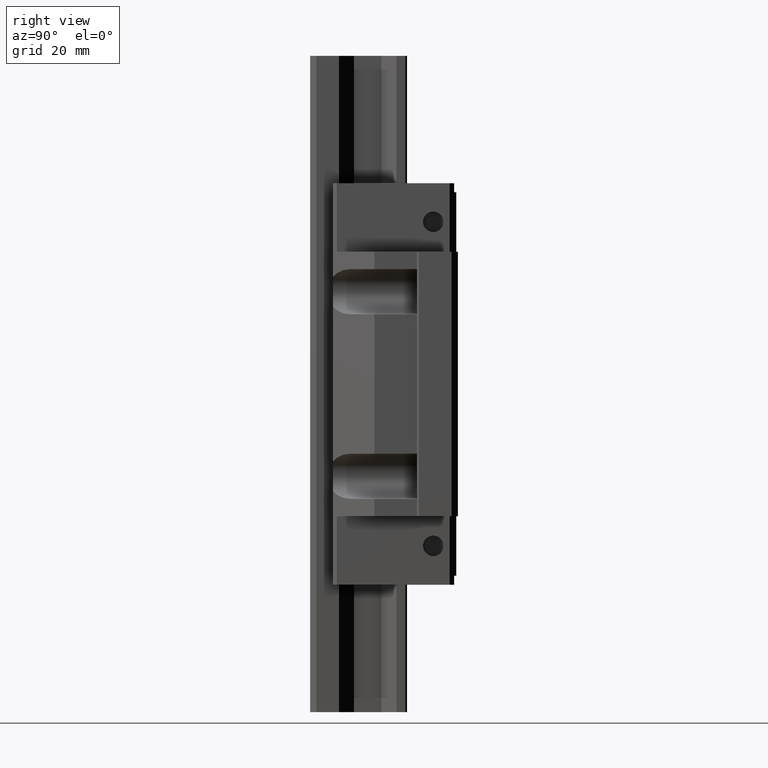
[diagram: clean part render]
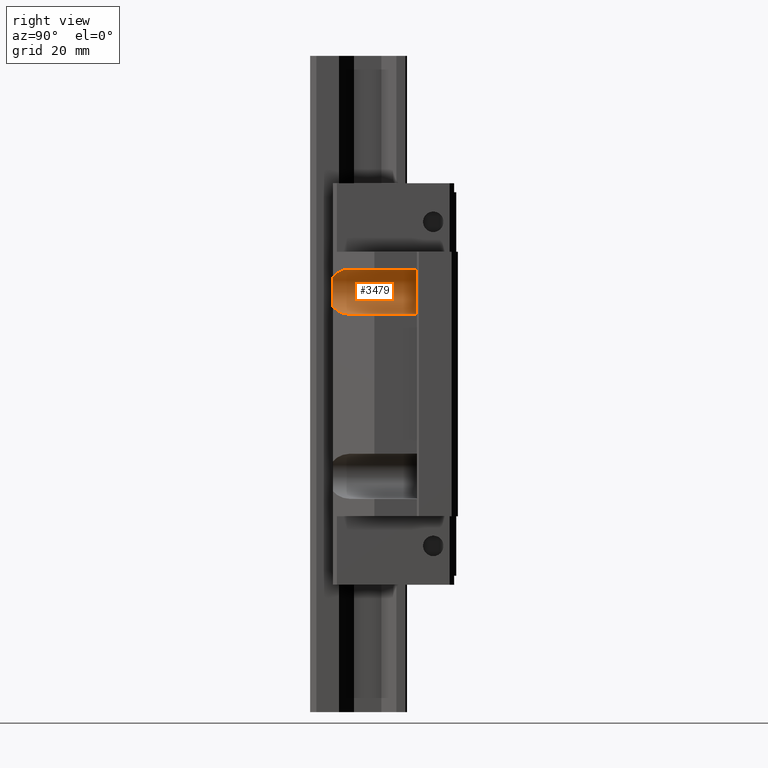
[diagram: same view with one face highlighted and labeled with its STEP entity id]
A machine part, right view. The second image highlights one B-rep face of the part: STEP entity #3479.
In plain terms, the highlighted cylindrical surface (edge-blend (fillet) strip) has radius 5.5 mm, axis along (0, 1, 0).
Its self-contained STEP definition (entity closure, byte-faithful):
#356=CARTESIAN_POINT('',(2.85E1,-3.049996923372E1,2.25E1));
#357=DIRECTION('',(-6.737067496146E-14,-1.E0,0.E0));
#358=DIRECTION('',(-7.566458100730E-1,5.102988738641E-14,6.538249904210E-1));
#359=AXIS2_PLACEMENT_3D('',#356,#357,#358);
#1102=CARTESIAN_POINT('',(2.433844828081E1,-3.049996900234E1,2.609603765913E1));
#1103=CARTESIAN_POINT('',(2.446703271619E1,-3.037138456696E1,2.624484330722E1));
#1104=CARTESIAN_POINT('',(2.474465867184E1,-3.009375912073E1,2.653406918174E1));
#1105=CARTESIAN_POINT('',(2.522954756495E1,-2.960887002287E1,2.693758573973E1));
#1106=CARTESIAN_POINT('',(2.577948186E1,-2.905893578268E1,2.729560996499E1));
#1107=CARTESIAN_POINT('',(2.639282442324E1,-2.844559320473E1,2.759620913460E1));
#1108=CARTESIAN_POINT('',(2.706342246609E1,-2.777499516583E1,2.782525278679E1));
#1109=CARTESIAN_POINT('',(2.777287194244E1,-2.706554568840E1,2.796769878814E1));
#1110=CARTESIAN_POINT('',(2.825515011513E1,-2.658326751595E1,2.8E1));
#1111=CARTESIAN_POINT('',(2.85E1,-2.633841763108E1,2.8E1));
#1113=DIRECTION('',(3.305170446036E-14,1.E0,0.E0));
#1114=VECTOR('',#1113,1.633841546130E1);
#1115=CARTESIAN_POINT('',(2.85E1,-2.633841763108E1,2.8E1));
#1116=LINE('',#1115,#1114);
#1117=DIRECTION('',(-3.305170444697E-14,-1.E0,0.E0));
#1118=VECTOR('',#1117,1.633841546793E1);
#1119=CARTESIAN_POINT('',(2.85E1,-1.000000216315E1,1.7E1));
#1120=LINE('',#1119,#1118);
#1121=CARTESIAN_POINT('',(2.85E1,-2.633841763108E1,1.7E1));
#1122=CARTESIAN_POINT('',(2.825515707161E1,-2.658326055946E1,1.7E1));
#1123=CARTESIAN_POINT('',(2.777289115764E1,-2.706552647340E1,1.703229963103E1));
#1124=CARTESIAN_POINT('',(2.706346331250E1,-2.777495431875E1,1.717473698823E1));
#1125=CARTESIAN_POINT('',(2.639286552875E1,-2.844555210172E1,1.740377310714E1));
#1126=CARTESIAN_POINT('',(2.577949652886E1,-2.905892110453E1,1.770438055397E1));
#1127=CARTESIAN_POINT('',(2.522955583240E1,-2.960886179009E1,1.806240876381E1));
#1128=CARTESIAN_POINT('',(2.474467836055E1,-3.009373930262E1,1.846591267200E1));
#1129=CARTESIAN_POINT('',(2.446704033970E1,-3.037137722226E1,1.875514780310E1));
#1130=CARTESIAN_POINT('',(2.433844883599E1,-3.049996872597E1,1.890396163109E1));
#1156=CARTESIAN_POINT('',(2.85E1,-1.E1,2.25E1));
#1157=DIRECTION('',(6.737067496146E-14,1.E0,0.E0));
#1158=DIRECTION('',(0.E0,0.E0,-1.E0));
#1159=AXIS2_PLACEMENT_3D('',#1156,#1157,#1158);
#1748=CARTESIAN_POINT('',(2.433844828081E1,-3.049996900234E1,2.609603765913E1));
#1749=VERTEX_POINT('',#1748);
#1750=CARTESIAN_POINT('',(2.433844903031E1,-3.049996923372E1,1.890396141195E1));
#1751=VERTEX_POINT('',#1750);
#1946=CARTESIAN_POINT('',(2.85E1,-1.000000216978E1,2.8E1));
#1947=VERTEX_POINT('',#1946);
#1948=CARTESIAN_POINT('',(2.85E1,-2.633841763108E1,2.8E1));
#1949=VERTEX_POINT('',#1948);
#1950=CARTESIAN_POINT('',(2.85E1,-1.000000216315E1,1.7E1));
#1951=VERTEX_POINT('',#1950);
#1954=CARTESIAN_POINT('',(2.85E1,-2.633841763108E1,1.7E1));
#1955=VERTEX_POINT('',#1954);
#3463=CARTESIAN_POINT('',(2.85E1,-1.E1,2.25E1));
#3464=DIRECTION('',(6.737067496146E-14,1.E0,0.E0));
#3465=DIRECTION('',(0.E0,0.E0,1.E0));
#3466=AXIS2_PLACEMENT_3D('',#3463,#3464,#3465);
#3467=CYLINDRICAL_SURFACE('',#3466,5.5E0);
#3468=ORIENTED_EDGE('',*,*,#2411,.F.);
#3470=ORIENTED_EDGE('',*,*,#3469,.T.);
#3472=ORIENTED_EDGE('',*,*,#3471,.T.);
#3474=ORIENTED_EDGE('',*,*,#3473,.F.);
#3475=ORIENTED_EDGE('',*,*,#3456,.T.);
#3476=ORIENTED_EDGE('',*,*,#3414,.T.);
#3477=EDGE_LOOP('',(#3468,#3470,#3472,#3474,#3475,#3476));
#3478=FACE_OUTER_BOUND('',#3477,.F.);
#3479=ADVANCED_FACE('',(#3478),#3467,.F.);
#360=CIRCLE('',#359,5.5E0);
#1112=B_SPLINE_CURVE_WITH_KNOTS('',3,(#1102,#1103,#1104,#1105,#1106,#1107,#1108,
#1109,#1110,#1111),.UNSPECIFIED.,.F.,.F.,(4,1,1,1,1,1,1,4),(0.E0,
1.428571428571E-1,2.857142857143E-1,4.285714285714E-1,5.714285714286E-1,
7.142857142857E-1,8.571428571429E-1,1.E0),.UNSPECIFIED.);
#1131=B_SPLINE_CURVE_WITH_KNOTS('',3,(#1121,#1122,#1123,#1124,#1125,#1126,#1127,
#1128,#1129,#1130),.UNSPECIFIED.,.F.,.F.,(4,1,1,1,1,1,1,4),(0.E0,
1.428571428571E-1,2.857142857143E-1,4.285714285714E-1,5.714285714286E-1,
7.142857142857E-1,8.571428571429E-1,1.E0),.UNSPECIFIED.);
#1160=CIRCLE('',#1159,5.5E0);
#2411=EDGE_CURVE('',#1749,#1751,#360,.T.);
#3414=EDGE_CURVE('',#1955,#1751,#1131,.T.);
#3456=EDGE_CURVE('',#1951,#1955,#1120,.T.);
#3469=EDGE_CURVE('',#1749,#1949,#1112,.T.);
#3471=EDGE_CURVE('',#1949,#1947,#1116,.T.);
#3473=EDGE_CURVE('',#1951,#1947,#1160,.T.);